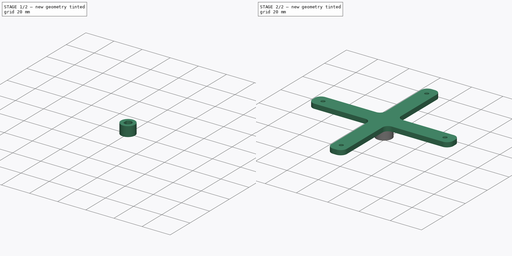
[diagram: build sequence overview — one tinted view per stage of 2, left to right]
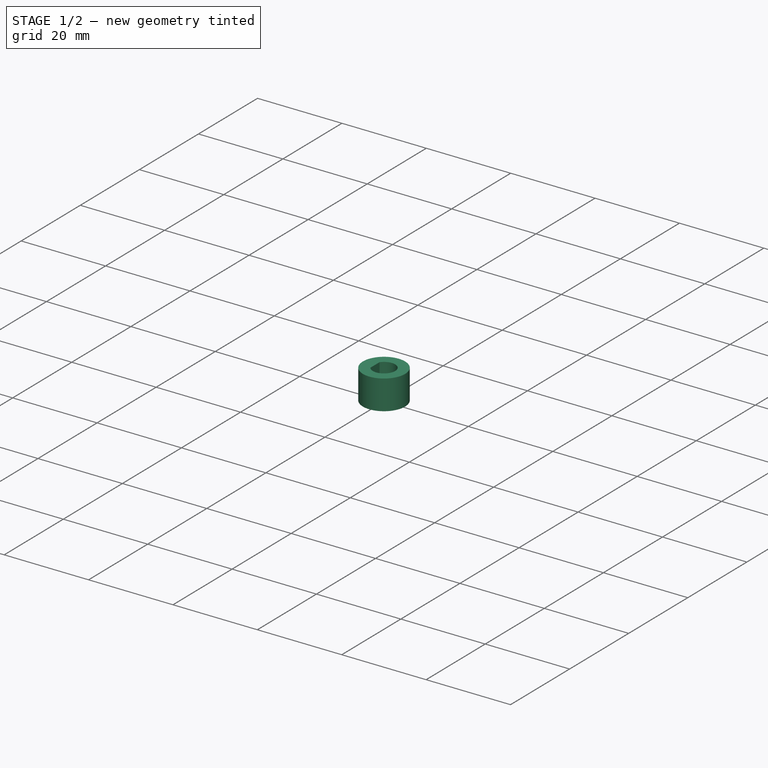
[diagram: stage 1 of 2 — iso view after this stage's code; geometry added in this stage tinted green]
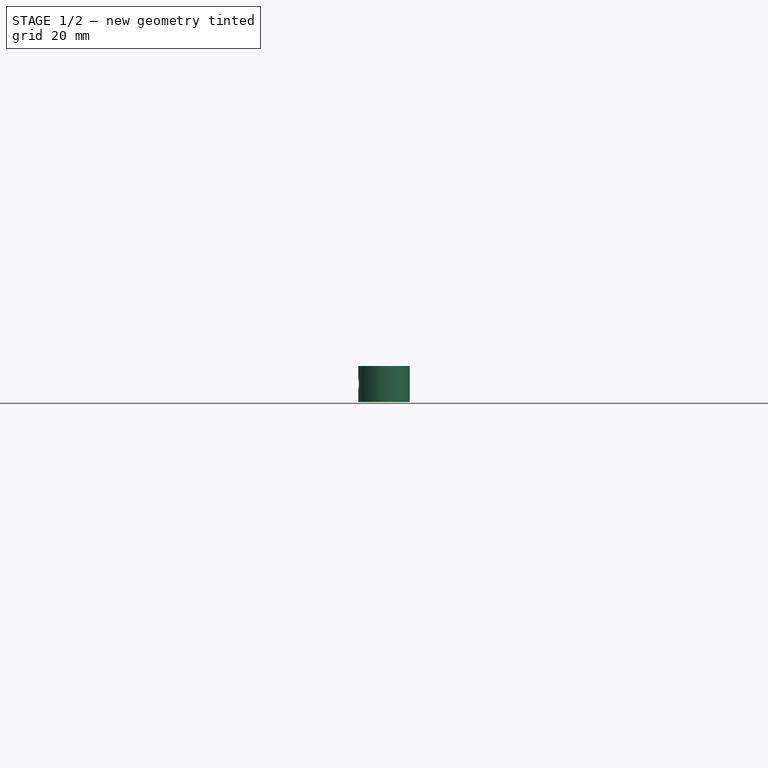
[diagram: stage 1 of 2 — front view after this stage's code; geometry added in this stage tinted green]
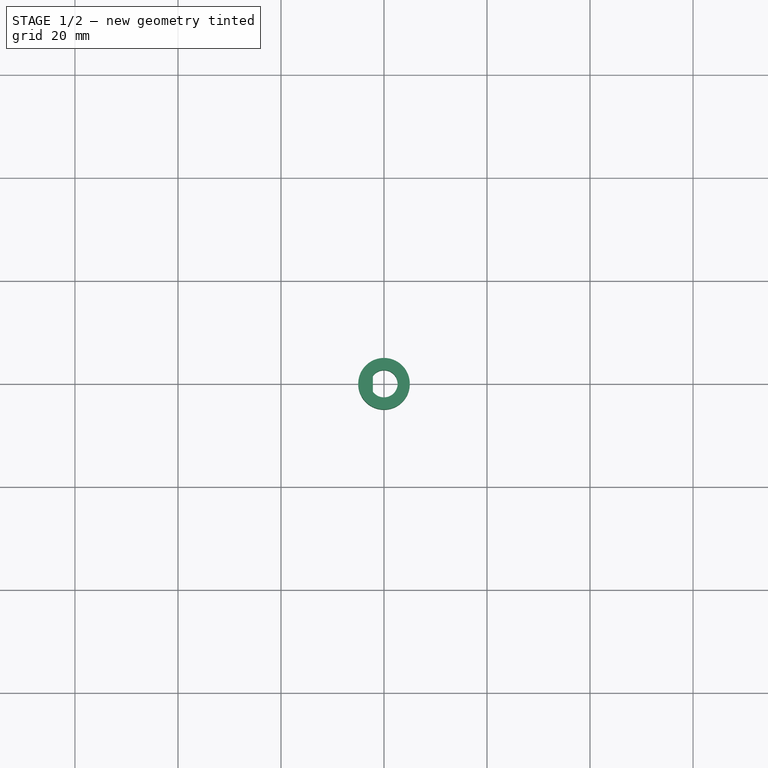
[diagram: stage 1 of 2 — top view after this stage's code; geometry added in this stage tinted green]
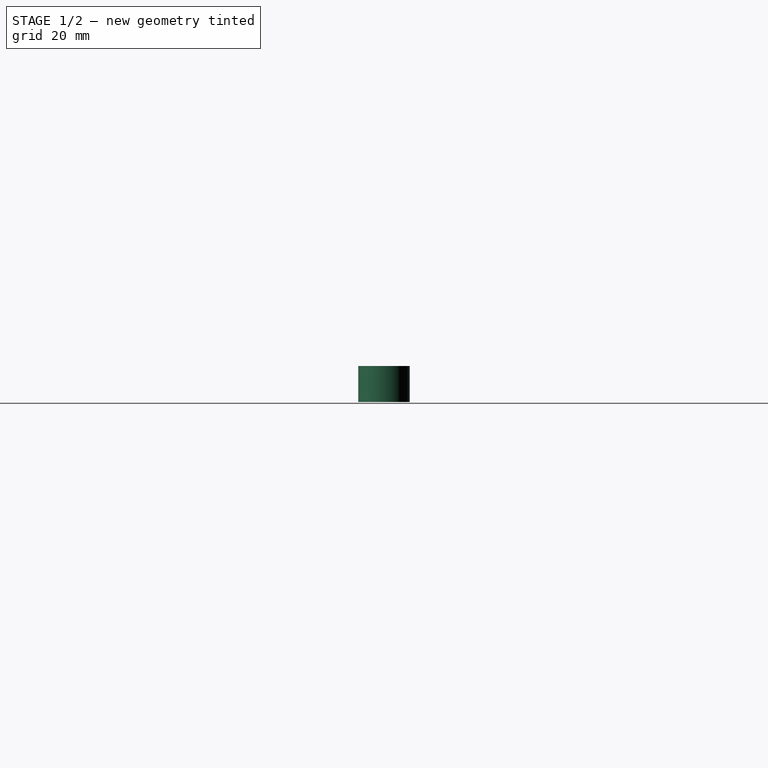
[diagram: stage 1 of 2 — right view after this stage's code; geometry added in this stage tinted green]
FCSTD DOCUMENT  (FreeCAD 0.19R24267 +99 (Git))
Label: XShape
License: All rights reserved
LicenseURL: http://en.wikipedia.org/wiki/All_rights_reserved
objects: Sketcher::SketchObject×3, PartDesign::Pad×2, PartDesign::Pocket×1, PartDesign::Body×1
note: 10 computed .brp shape members not serialized (recipe doc carries the construction recipe); baked Part::Feature solids carry a one-line shape summary decoded from their .brp

FEATURE [Sketcher::SketchObject] Sketch002
  AttachmentOffset = pos=(0,0,0) rot=(0,0,1;3.14159rad)
  FullyConstrained = true
  MapMode = 5
  Placement = pos=(0,0,0) rot=(0,0,1;3.14159rad)
  Support = -> [XY_Plane]
  sketch-geometry (3):
    g0: Circle CenterX=0 CenterY=0 CenterZ=0 NormalX=0 NormalY=0 NormalZ=1 AngleXU=0 Radius=5
    g1: ArcOfCircle CenterX=0 CenterY=0 CenterZ=0 NormalX=0 NormalY=0 NormalZ=1 AngleXU=0 Radius=2.65 StartAngle=0.624389 EndAngle=5.6588
    g2: LineSegment StartX=2.15 StartY=1.54919 StartZ=0 EndX=2.15 EndY=-1.54919 EndZ=0
  constraints (8):
    c: Radius(g0) = 5
    c: Vertical(g2)
    c: DistanceX(g0,g2) = 2.15
    c: Coincident(g1,g-1)
    c: Coincident(g0,g1)
    c: Coincident(g1,g2)
    c: Coincident(g1,g2)
    c: Radius(g1) = 2.65
FEATURE [PartDesign::Pad] Pad002  label="Pad000"
  Direction = (1,1,1)
  Length = 7
  Length2 = 100
  Profile = -> Sketch002
  Reversed = true
  Type = 0
FEATURE [Sketcher::SketchObject] Sketch
  AttachmentOffset = pos=(0,-3.5,0) rot=(0,0,1;0rad)
  FullyConstrained = true
  MapMode = 5
  Placement = pos=(8e-16,-8e-16,-3.5) rot=(0.57735,0.57735,0.57735;2.0944rad)
  Support = -> [YZ_Plane]
  sketch-geometry (1):
    g0: Circle CenterX=0 CenterY=0 CenterZ=0 NormalX=0 NormalY=0 NormalZ=1 AngleXU=0 Radius=1.15
  constraints (2):
    c: Coincident(g0,g-1)
    c: Radius(g0) = 1.15
FEATURE [PartDesign::Pocket] Pocket
  BaseFeature = -> Pad002
  Length = 5
  Length2 = 100
  Profile = -> Sketch
  Type = 0
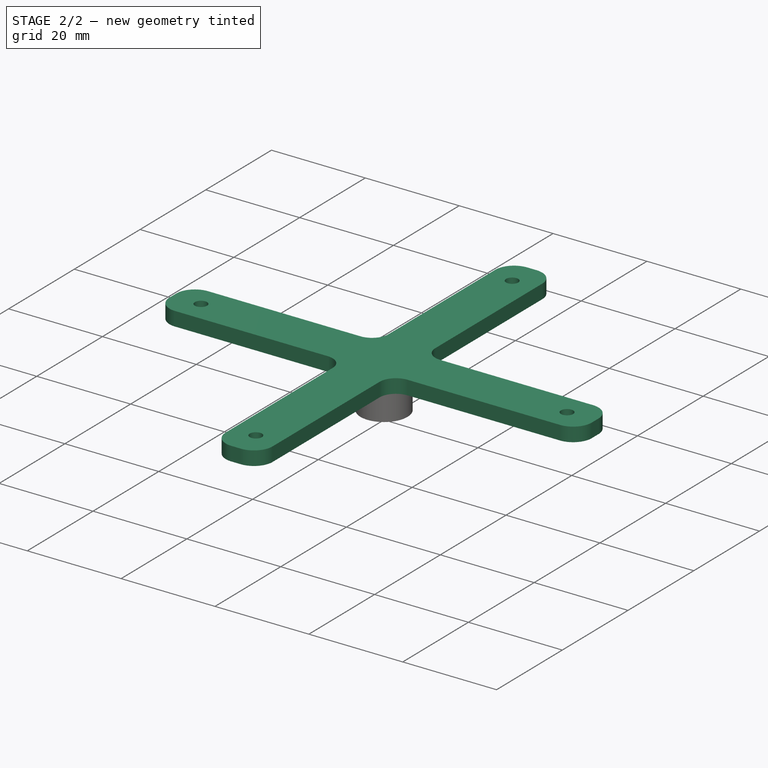
[diagram: stage 2 of 2 — iso view after this stage's code; geometry added in this stage tinted green]
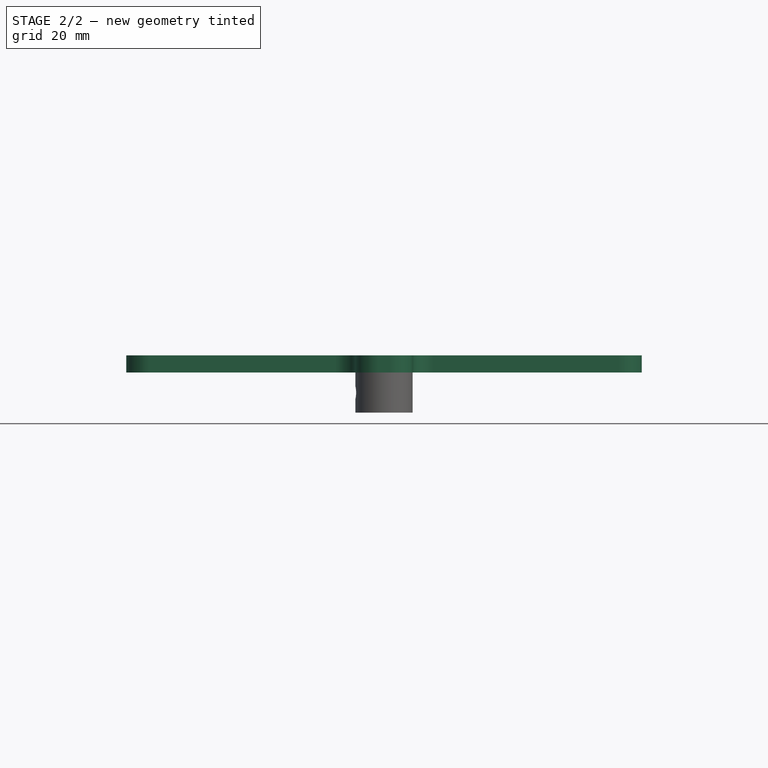
[diagram: stage 2 of 2 — front view after this stage's code; geometry added in this stage tinted green]
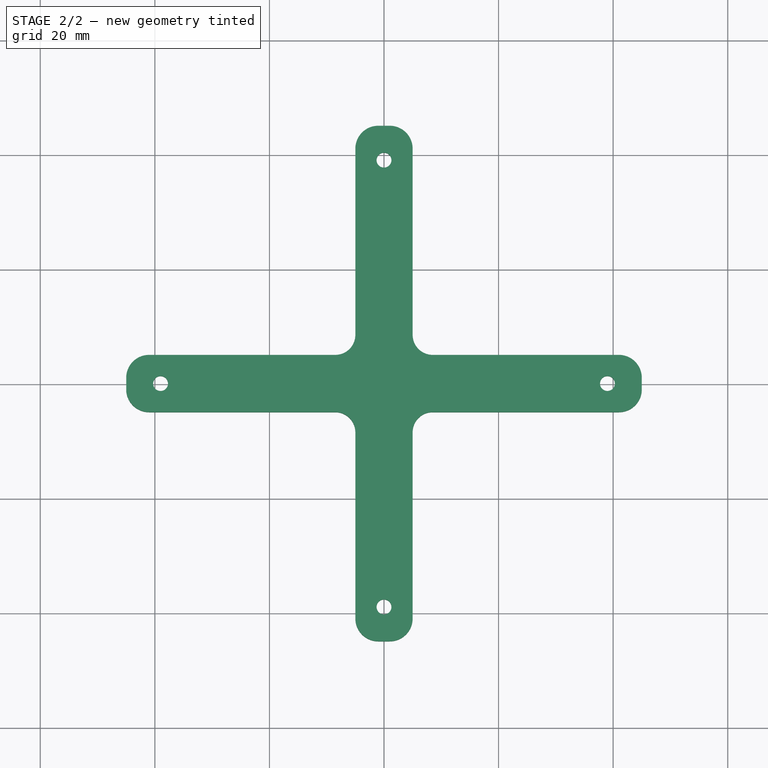
[diagram: stage 2 of 2 — top view after this stage's code; geometry added in this stage tinted green]
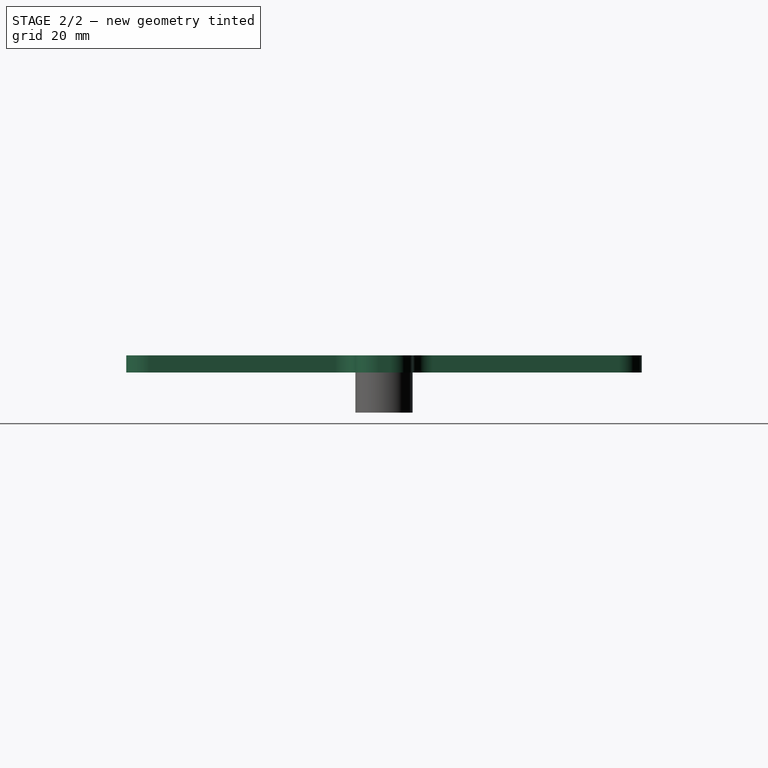
[diagram: stage 2 of 2 — right view after this stage's code; geometry added in this stage tinted green]
FEATURE [Sketcher::SketchObject] Sketch003
  FullyConstrained = true
  MapMode = 5
  Support = -> [XY_Plane]
  sketch-geometry (28):
    g0: LineSegment StartX=-41 StartY=5 StartZ=0 EndX=-8.5 EndY=5 EndZ=0
    g1: LineSegment StartX=45 StartY=1 StartZ=0 EndX=45 EndY=-1 EndZ=0
    g2: LineSegment StartX=41 StartY=-5 StartZ=0 EndX=8.5 EndY=-5 EndZ=0
    g3: LineSegment StartX=-45 StartY=-1 StartZ=0 EndX=-45 EndY=1 EndZ=0
    g4: LineSegment StartX=-1 StartY=45 StartZ=0 EndX=1 EndY=45 EndZ=0
    g5: LineSegment StartX=5 StartY=41 StartZ=0 EndX=5 EndY=8.5 EndZ=0
    g6: LineSegment StartX=1 StartY=-45 StartZ=0 EndX=-1 EndY=-45 EndZ=0
    g7: LineSegment StartX=-5 StartY=-41 StartZ=0 EndX=-5 EndY=-8.5 EndZ=0
    g8: LineSegment StartX=8.5 StartY=5 StartZ=0 EndX=41 EndY=5 EndZ=0
    g9: LineSegment StartX=-8.5 StartY=-5 StartZ=0 EndX=-41 EndY=-5 EndZ=0
    g10: LineSegment StartX=5 StartY=-8.5 StartZ=0 EndX=5 EndY=-41 EndZ=0
    g11: LineSegment StartX=-5 StartY=8.5 StartZ=0 EndX=-5 EndY=41 EndZ=0
    g12: ArcOfCircle CenterX=-8.5 CenterY=-8.5 CenterZ=0 NormalX=0 NormalY=0 NormalZ=1 AngleXU=0 Radius=3.5 StartAngle=1e-16 EndAngle=1.5708
    g13: ArcOfCircle CenterX=-8.5 CenterY=8.5 CenterZ=0 NormalX=0 NormalY=0 NormalZ=1 AngleXU=0 Radius=3.5 StartAngle=4.71239 EndAngle=6.28319
    g14: ArcOfCircle CenterX=8.5 CenterY=8.5 CenterZ=0 NormalX=0 NormalY=0 NormalZ=1 AngleXU=0 Radius=3.5 StartAngle=3.14159 EndAngle=4.71239
    g15: ArcOfCircle CenterX=8.5 CenterY=-8.5 CenterZ=0 NormalX=0 NormalY=0 NormalZ=1 AngleXU=0 Radius=3.5 StartAngle=1.5708 EndAngle=3.14159
    g16: ArcOfCircle CenterX=41 CenterY=1 CenterZ=0 NormalX=0 NormalY=0 NormalZ=1 AngleXU=0 Radius=4 StartAngle=-2.7e-15 EndAngle=1.5708
    g17: ArcOfCircle CenterX=41 CenterY=-1 CenterZ=0 NormalX=0 NormalY=0 NormalZ=1 AngleXU=0 Radius=4 StartAngle=4.71239 EndAngle=6.28319
    g18: ArcOfCircle CenterX=-41 CenterY=-1 CenterZ=0 NormalX=0 NormalY=0 NormalZ=1 AngleXU=0 Radius=4 StartAngle=3.14159 EndAngle=4.71239
    g19: ArcOfCircle CenterX=-41 CenterY=1 CenterZ=0 NormalX=0 NormalY=0 NormalZ=1 AngleXU=0 Radius=4 StartAngle=1.5708 EndAngle=3.14159
    g20: ArcOfCircle CenterX=-1 CenterY=41 CenterZ=0 NormalX=0 NormalY=0 NormalZ=1 AngleXU=0 Radius=4 StartAngle=1.5708 EndAngle=3.14159
    g21: ArcOfCircle CenterX=1 CenterY=41 CenterZ=0 NormalX=0 NormalY=0 NormalZ=1 AngleXU=0 Radius=4 StartAngle=-9e-16 EndAngle=1.5708
    g22: ArcOfCircle CenterX=-1 CenterY=-41 CenterZ=0 NormalX=0 NormalY=0 NormalZ=1 AngleXU=0 Radius=4 StartAngle=3.14159 EndAngle=4.71239
    g23: ArcOfCircle CenterX=1 CenterY=-41 CenterZ=0 NormalX=0 NormalY=0 NormalZ=1 AngleXU=0 Radius=4 StartAngle=4.71239 EndAngle=6.28319
    g24: Circle CenterX=39 CenterY=0 CenterZ=0 NormalX=0 NormalY=0 NormalZ=1 AngleXU=0 Radius=1.3
    g25: Circle CenterX=-39 CenterY=0 CenterZ=0 NormalX=0 NormalY=0 NormalZ=1 AngleXU=0 Radius=1.3
    g26: Circle CenterX=0 CenterY=39 CenterZ=0 NormalX=0 NormalY=0 NormalZ=1 AngleXU=0 Radius=1.3
    g27: Circle CenterX=0 CenterY=-39 CenterZ=0 NormalX=0 NormalY=0 NormalZ=1 AngleXU=0 Radius=1.3
  constraints (66):
    c: Horizontal(g2)
    c: Vertical(g1)
    c: Horizontal(g6)
    c: Vertical(g7)
    c: Tangent(g0,g8)
    c: Tangent(g2,g9)
    c: Tangent(g5,g10)
    c: Tangent(g7,g11)
    c: Tangent(g9,g12) = -1.5708
    c: Tangent(g7,g12) = -1.5708
    c: Tangent(g0,g13) = -1.5708
    c: Tangent(g11,g13) = -1.5708
    c: Tangent(g5,g14) = -1.5708
    c: Tangent(g8,g14) = -1.5708
    c: Tangent(g2,g15) = -1.5708
    c: Tangent(g10,g15) = -1.5708
    c: Equal(g12,g15)
    c: Equal(g13,g12)
    c: Radius(g12) = 3.5
    c: Tangent(g8,g16) = 1.5708
    c: Tangent(g1,g16) = 1.5708
    c: Tangent(g1,g17) = 1.5708
    c: Tangent(g2,g17) = 1.5708
    c: Tangent(g9,g18) = 1.5708
    c: Tangent(g3,g18) = 1.5708
    c: Tangent(g0,g19) = 1.5708
    c: Tangent(g3,g19) = 1.5708
    c: Equal(g18,g19)
    c: Equal(g19,g16)
    c: Equal(g16,g17)
    c: Horizontal(g0)
    c: Vertical(g3)
    c: DistanceX(g3,g-1) = 45
    c: DistanceY(g-1,g0) = 5
    c: DistanceY(g9,g-1) = 5
    c: Radius(g19) = 4
    c: Tangent(g4,g20) = 1.5708
    c: Tangent(g11,g20) = 1.5708
    c: Tangent(g4,g21) = 1.5708
    c: Tangent(g5,g21) = 1.5708
    c: Tangent(g7,g22) = 1.5708
    c: Tangent(g6,g22) = 1.5708
    c: Tangent(g10,g23) = 1.5708
    c: Tangent(g6,g23) = 1.5708
    c: Vertical(g10)
    c: Equal(g23,g22)
    c: Equal(g22,g20)
    c: Equal(g20,g21)
    c: Horizontal(g4)
    c: DistanceX(g-1,g5) = 5
    c: Equal(g16,g20)
    c: DistanceX(g11,g-1) = 5
    c: DistanceY(g-1,g4) = 45
    c: Equal(g14,g13)
    c: DistanceY(g6,g-1) = 45
    c: DistanceX(g-1,g1) = 45
    c: Radius(g24) = 1.3
    c: DistanceY(g-1,g24) = 0
    c: DistanceX(g-1,g24) = 39
    c: Equal(g26,g24)
    c: Equal(g25,g26)
    c: Symmetric(g25,g24,g-1)
    c: DistanceX(g-1,g26) = 0
    c: DistanceY(g-1,g26) = 39
    c: Equal(g27,g26)
    c: Symmetric(g27,g26,g-1)
FEATURE [PartDesign::Pad] Pad
  BaseFeature = -> Pocket
  Direction = (1,1,1)
  Length = 3
  Length2 = 100
  Profile = -> Sketch003
  Type = 0
FEATURE [PartDesign::Body] Body
  Group = -> [Sketch002,Pad002,Sketch,Pocket,Sketch003,Pad]
  Origin = -> Origin
  Tip = -> Pad
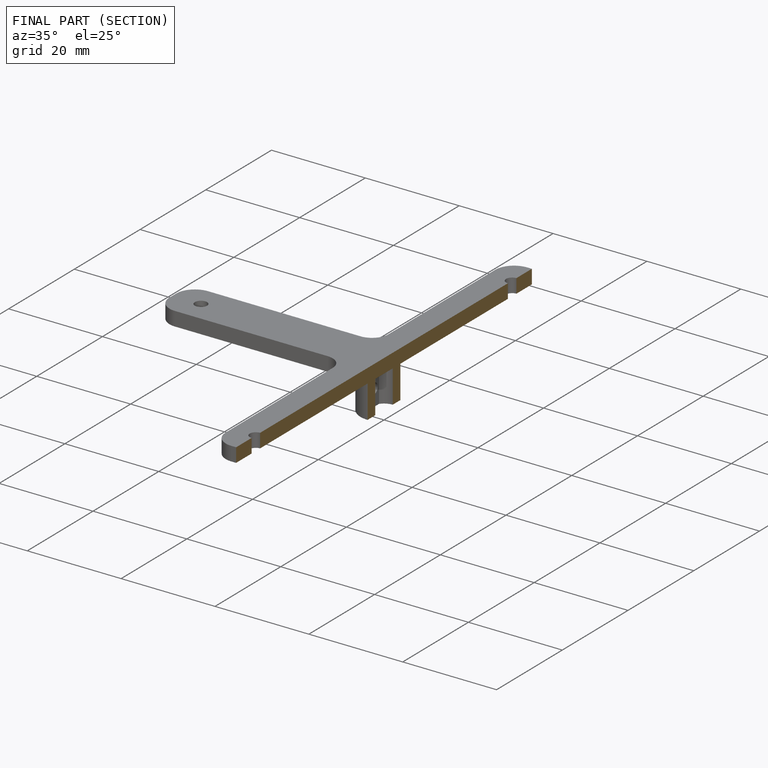
[diagram: finished part — half-section view (interior)]
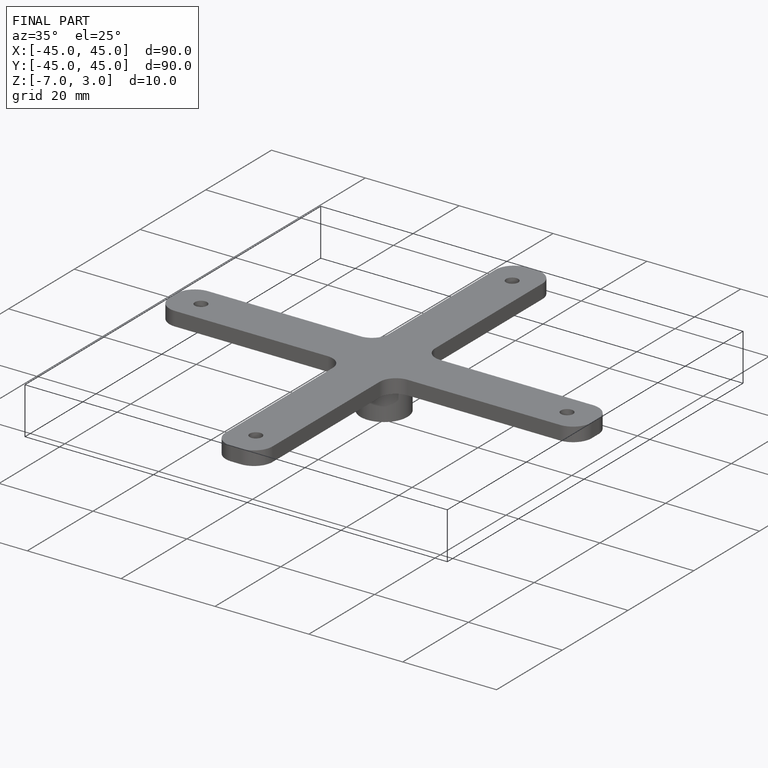
[diagram: finished part — iso view with bounding-box wireframe]
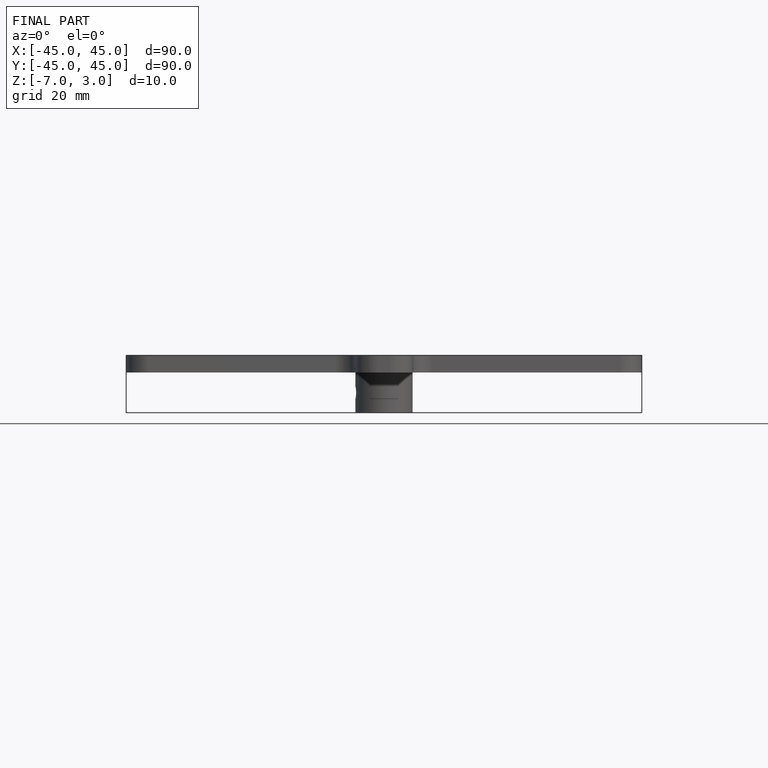
[diagram: finished part — front view with bounding-box wireframe]
